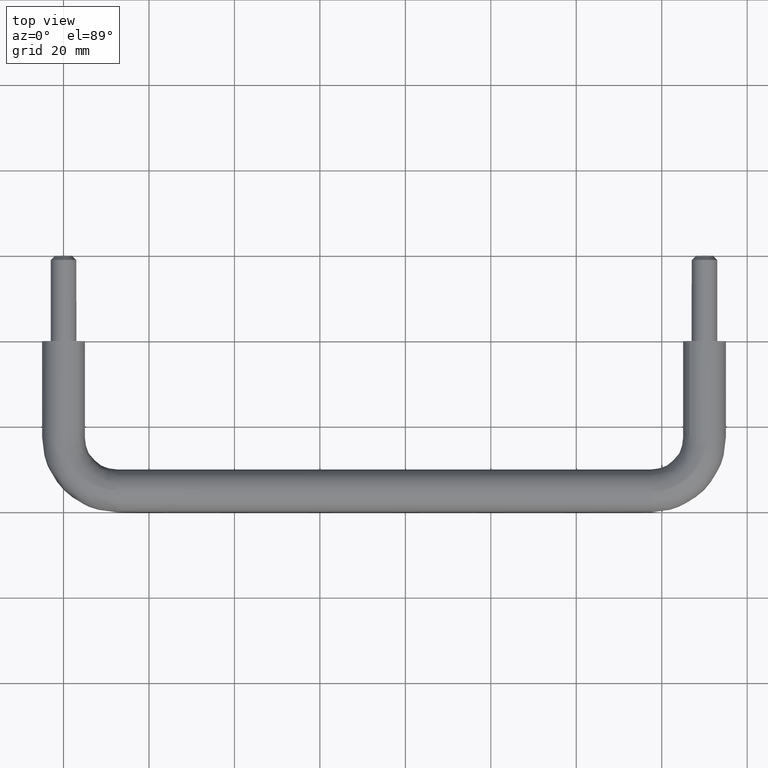
[diagram: clean part render]
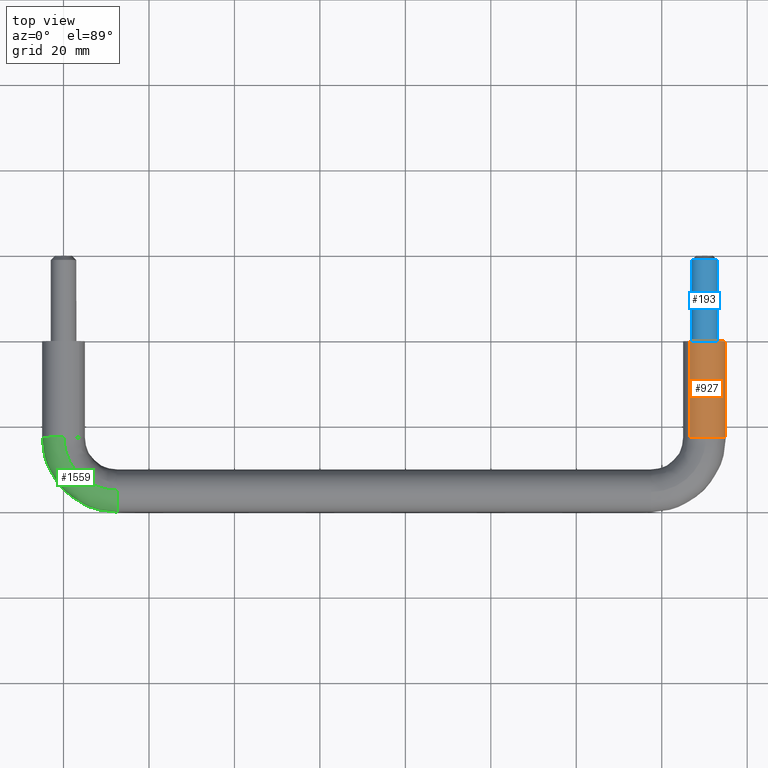
[diagram: same view with three faces highlighted in distinct colors, each labeled with its STEP entity id]
A machine part, top view with three faces highlighted in distinct colors.
Their STEP definitions:

[orange] entity #927 — the highlighted face is a freeform B-spline surface patch.
#730=CARTESIAN_POINT('',(153.294847003536010,-22.500000000000320,-3.760848737092333));
#731=VERTEX_POINT('',#730);
#764=CARTESIAN_POINT('',(146.495454192100910,-22.500000000000291,3.566252750484179));
#765=VERTEX_POINT('',#764);
#779=CARTESIAN_POINT('',(146.495454185912790,1.744438E-014,3.566252744403147));
#780=VERTEX_POINT('',#779);
#781=CARTESIAN_POINT('',(146.495454192100910,-22.500000000000291,3.566252750484179));
#782=CARTESIAN_POINT('',(146.495454185912790,1.744438E-014,3.566252744403147));
#783=QUASI_UNIFORM_CURVE('',1,(#781,#782),.UNSPECIFIED.,.F.,.U.);
#784=EDGE_CURVE('',#765,#780,#783,.T.);
#801=CARTESIAN_POINT('',(153.294847013868010,1.582898E-014,-3.760848728040543));
#802=VERTEX_POINT('',#801);
#818=CARTESIAN_POINT('',(153.294847003536010,-22.500000000000320,-3.760848737092333));
#819=CARTESIAN_POINT('',(153.294847013868010,1.582898E-014,-3.760848728040543));
#820=QUASI_UNIFORM_CURVE('',1,(#818,#819),.UNSPECIFIED.,.F.,.U.);
#821=EDGE_CURVE('',#731,#802,#820,.T.);
#826=CARTESIAN_POINT('',(146.495453678500810,-23.062500000989999,3.566252245770907));
#827=CARTESIAN_POINT('',(150.061705924271650,-23.062500000990003,7.070798567270160));
#828=CARTESIAN_POINT('',(153.566252245770900,-23.062500000989999,3.504546321499253));
#829=CARTESIAN_POINT('',(157.070798567270170,-23.062500000990003,-0.061705924271653));
#830=CARTESIAN_POINT('',(153.504546321499300,-23.062500000989999,-3.566252245770907));
#831=CARTESIAN_POINT('',(153.402481714390890,-23.062500000989999,-3.666550855837281));
#832=CARTESIAN_POINT('',(153.294847860799650,-23.062500000990006,-3.760847986050986));
#833=CARTESIAN_POINT('',(146.495453678500810,0.576562500024771,3.566252245770907));
#834=CARTESIAN_POINT('',(150.061705924271650,0.576562500024771,7.070798567270160));
#835=CARTESIAN_POINT('',(153.566252245770900,0.576562500024771,3.504546321499253));
#836=CARTESIAN_POINT('',(157.070798567270170,0.576562500024771,-0.061705924271653));
#837=CARTESIAN_POINT('',(153.504546321499300,0.576562500024771,-3.566252245770907));
#838=CARTESIAN_POINT('',(153.402481714390890,0.576562500024771,-3.666550855837281));
#839=CARTESIAN_POINT('',(153.294847860799650,0.576562500024771,-3.760847986050986));
#847=(BOUNDED_SURFACE()B_SPLINE_SURFACE(2,1,((#826,#833),(#827,#834),(#828,#835),(#829,#836),(#830,#837),(#831,#838),(#832,#839)),.UNSPECIFIED.,.F.,.F.,.U.)B_SPLINE_SURFACE_WITH_KNOTS((3,2,2,3),(2,2),(0.0,8.284271247461899,16.568542494923800,16.899913344822270),(0.0,23.639062501014781),.UNSPECIFIED.)GEOMETRIC_REPRESENTATION_ITEM()RATIONAL_B_SPLINE_SURFACE(((1.0,1.0),(0.707106781186548,0.707106781186548),(1.0,1.0),(0.707106781186548,0.707106781186548),(1.0,1.0),(0.988284271247462,0.988284271247462),(0.977505800795127,0.977505800795127)))REPRESENTATION_ITEM('')SURFACE());
#848=CARTESIAN_POINT('',(155.0,-22.500000000000298,0.0));
#849=VERTEX_POINT('',#848);
#850=CARTESIAN_POINT('',(155.0,-22.500000000000298,0.0));
#851=CARTESIAN_POINT('',(154.999999999999940,-22.500000000000302,-2.266978966272200));
#852=CARTESIAN_POINT('',(153.294847003535980,-22.500000000000295,-3.760848737092426));
#860=(BOUNDED_CURVE()B_SPLINE_CURVE(2,(#850,#851,#852),.UNSPECIFIED.,.F.,.U.)B_SPLINE_CURVE_WITH_KNOTS((3,3),(0.0,0.134954754507824),.UNSPECIFIED.)CURVE()GEOMETRIC_REPRESENTATION_ITEM()RATIONAL_B_SPLINE_CURVE((1.0,0.841890670232096,0.854482186737985))REPRESENTATION_ITEM(''));
#861=EDGE_CURVE('',#849,#731,#860,.T.);
#862=ORIENTED_EDGE('',*,*,#861,.T.);
#863=ORIENTED_EDGE('',*,*,#821,.T.);
#864=CARTESIAN_POINT('',(155.0,1.734723E-014,0.0));
#865=VERTEX_POINT('',#864);
#866=CARTESIAN_POINT('',(155.0,1.734723E-014,0.0));
#867=CARTESIAN_POINT('',(154.999999999999970,1.734723E-014,-2.266978957992192));
#868=CARTESIAN_POINT('',(153.294847013868040,1.734723E-014,-3.760848728040638));
#876=(BOUNDED_CURVE()B_SPLINE_CURVE(2,(#866,#867,#868),.UNSPECIFIED.,.F.,.U.)B_SPLINE_CURVE_WITH_KNOTS((3,3),(0.0,0.134954754092844),.UNSPECIFIED.)CURVE()GEOMETRIC_REPRESENTATION_ITEM()RATIONAL_B_SPLINE_CURVE((1.0,0.841890670718276,0.854482186660548))REPRESENTATION_ITEM(''));
#877=EDGE_CURVE('',#865,#802,#876,.T.);
#878=ORIENTED_EDGE('',*,*,#877,.F.);
#879=CARTESIAN_POINT('',(146.495454185912820,1.744438E-014,3.566252744403147));
#880=CARTESIAN_POINT('',(147.954446823338690,1.734723E-014,5.0));
#881=CARTESIAN_POINT('',(150.0,1.734723E-014,5.0));
#882=CARTESIAN_POINT('',(155.000000000000030,1.734723E-014,5.000000000000001));
#883=CARTESIAN_POINT('',(155.0,1.734723E-014,0.0));
#891=(BOUNDED_CURVE()B_SPLINE_CURVE(2,(#879,#880,#881,#882,#883),.UNSPECIFIED.,.F.,.U.)B_SPLINE_CURVE_WITH_KNOTS((3,2,3),(0.626316800529167,0.750000000000000,1.0),.UNSPECIFIED.)CURVE()GEOMETRIC_REPRESENTATION_ITEM()RATIONAL_B_SPLINE_CURVE((0.853569642311352,0.855096118375366,1.0,0.707106781186548,1.0))REPRESENTATION_ITEM(''));
#892=EDGE_CURVE('',#780,#865,#891,.T.);
#893=ORIENTED_EDGE('',*,*,#892,.F.);
#894=ORIENTED_EDGE('',*,*,#784,.F.);
#895=CARTESIAN_POINT('',(150.348666260412900,-22.500000000475019,4.987828369024909));
#896=VERTEX_POINT('',#895);
#897=CARTESIAN_POINT('',(146.495454192100910,-22.500000000000288,3.566252750484179));
#898=CARTESIAN_POINT('',(147.954446833466700,-22.500000000000298,4.999999999999999));
#899=CARTESIAN_POINT('',(150.0,-22.500000000000298,5.0));
#900=CARTESIAN_POINT('',(150.174545581918580,-22.500000000000295,4.999999999999999));
#901=CARTESIAN_POINT('',(150.348666260412930,-22.500000000475019,4.987828369024909));
#909=(BOUNDED_CURVE()B_SPLINE_CURVE(2,(#897,#898,#899,#900,#901),.UNSPECIFIED.,.F.,.U.)B_SPLINE_CURVE_WITH_KNOTS((3,2,3),(0.626316801052815,0.750000000000000,0.762166313639729),.UNSPECIFIED.)CURVE()GEOMETRIC_REPRESENTATION_ITEM()RATIONAL_B_SPLINE_CURVE((0.853569642324278,0.855096118988858,1.0,0.985746276947863,0.972879876017215))REPRESENTATION_ITEM(''));
#910=EDGE_CURVE('',#765,#896,#909,.T.);
#911=ORIENTED_EDGE('',*,*,#910,.T.);
#912=CARTESIAN_POINT('',(150.348666260412870,-22.500000000475019,4.987828369024910));
#913=CARTESIAN_POINT('',(155.0,-22.500000000000306,4.662684231580748));
#914=CARTESIAN_POINT('',(155.0,-22.500000000000298,0.0));
#922=(BOUNDED_CURVE()B_SPLINE_CURVE(2,(#912,#913,#914),.UNSPECIFIED.,.F.,.U.)B_SPLINE_CURVE_WITH_KNOTS((3,3),(0.762166313639729,1.0),.UNSPECIFIED.)CURVE()GEOMETRIC_REPRESENTATION_ITEM()RATIONAL_B_SPLINE_CURVE((0.972879876017216,0.721360504238684,1.0))REPRESENTATION_ITEM(''));
#923=EDGE_CURVE('',#896,#849,#922,.T.);
#924=ORIENTED_EDGE('',*,*,#923,.T.);
#925=EDGE_LOOP('',(#862,#863,#878,#893,#894,#911,#924));
#926=FACE_OUTER_BOUND('',#925,.T.);
#927=ADVANCED_FACE('',(#926),#847,.T.);

[blue] entity #193 — the highlighted face is a freeform B-spline surface patch.
#44=CARTESIAN_POINT('',(152.281217896800090,19.475000000000009,-1.948344144990550));
#45=CARTESIAN_POINT('',(154.229562041790620,19.475000000000009,0.332873751809542));
#46=CARTESIAN_POINT('',(151.948344144990610,19.475000000000009,2.281217896800092));
#47=CARTESIAN_POINT('',(149.667126248190440,19.475000000000009,4.229562041790642));
#48=CARTESIAN_POINT('',(147.718782103199910,19.475000000000009,1.948344144990550));
#49=CARTESIAN_POINT('',(145.770437958209440,19.475000000000009,-0.332873751809542));
#50=CARTESIAN_POINT('',(148.051655855009390,19.475000000000009,-2.281217896800092));
#51=CARTESIAN_POINT('',(152.281217896800090,-0.486874999999980,-1.948344144990550));
#52=CARTESIAN_POINT('',(154.229562041790620,-0.486874999999980,0.332873751809542));
#53=CARTESIAN_POINT('',(151.948344144990610,-0.486874999999980,2.281217896800092));
#54=CARTESIAN_POINT('',(149.667126248190440,-0.486874999999980,4.229562041790642));
#55=CARTESIAN_POINT('',(147.718782103199910,-0.486874999999980,1.948344144990550));
#56=CARTESIAN_POINT('',(145.770437958209440,-0.486874999999980,-0.332873751809542));
#57=CARTESIAN_POINT('',(148.051655855009390,-0.486874999999980,-2.281217896800092));
#65=(BOUNDED_SURFACE()B_SPLINE_SURFACE(2,1,((#44,#51),(#45,#52),(#46,#53),(#47,#54),(#48,#55),(#49,#56),(#50,#57)),.UNSPECIFIED.,.F.,.F.,.U.)B_SPLINE_SURFACE_WITH_KNOTS((3,2,2,3),(2,2),(0.0,4.970562748477141,9.941125496954282,14.911688245431421),(0.0,19.961874999999988),.UNSPECIFIED.)GEOMETRIC_REPRESENTATION_ITEM()RATIONAL_B_SPLINE_SURFACE(((1.0,1.0),(0.707106781186548,0.707106781186548),(1.0,1.0),(0.707106781186548,0.707106781186548),(1.0,1.0),(0.707106781186548,0.707106781186548),(1.0,1.0)))REPRESENTATION_ITEM('')SURFACE());
#66=CARTESIAN_POINT('',(153.0,1.734723E-014,0.0));
#67=VERTEX_POINT('',#66);
#68=CARTESIAN_POINT('',(152.281219531185910,-7.767398E-014,-1.948342231367466));
#69=VERTEX_POINT('',#68);
#70=CARTESIAN_POINT('',(153.0,1.734723E-014,0.0));
#71=CARTESIAN_POINT('',(153.000000000000060,1.734723E-014,-1.106757001784977));
#72=CARTESIAN_POINT('',(152.281219531185850,-7.767398E-014,-1.948342231367466));
#80=(BOUNDED_CURVE()B_SPLINE_CURVE(2,(#70,#71,#72),.UNSPECIFIED.,.F.,.U.)B_SPLINE_CURVE_WITH_KNOTS((3,3),(0.0,0.113143034579826),.UNSPECIFIED.)CURVE()GEOMETRIC_REPRESENTATION_ITEM()RATIONAL_B_SPLINE_CURVE((1.0,0.867444689662372,0.854871059814903))REPRESENTATION_ITEM(''));
#81=EDGE_CURVE('',#67,#69,#80,.T.);
#82=ORIENTED_EDGE('',*,*,#81,.T.);
#83=CARTESIAN_POINT('',(152.281219511010700,19.0,-1.948342254989633));
#84=VERTEX_POINT('',#83);
#85=CARTESIAN_POINT('',(152.281219511010700,19.0,-1.948342254989633));
#86=CARTESIAN_POINT('',(152.281219531185910,-7.767398E-014,-1.948342231367466));
#87=QUASI_UNIFORM_CURVE('',1,(#85,#86),.UNSPECIFIED.,.F.,.U.);
#88=EDGE_CURVE('',#84,#69,#87,.T.);
#89=ORIENTED_EDGE('',*,*,#88,.F.);
#90=CARTESIAN_POINT('',(152.990752001199500,18.999999999999730,0.235377287185623));
#91=VERTEX_POINT('',#90);
#92=CARTESIAN_POINT('',(152.990752001199550,18.999999999999726,0.235377287185623));
#93=CARTESIAN_POINT('',(153.0,18.999999999999996,0.117870321025085));
#94=CARTESIAN_POINT('',(153.0,19.0,0.0));
#95=CARTESIAN_POINT('',(153.0,18.999999999999996,-1.106757019431589));
#96=CARTESIAN_POINT('',(152.281219511010620,19.000000000000004,-1.948342254989634));
#104=(BOUNDED_CURVE()B_SPLINE_CURVE(2,(#92,#93,#94,#95,#96),.UNSPECIFIED.,.F.,.U.)B_SPLINE_CURVE_WITH_KNOTS((3,2,3),(0.736331300632530,0.750000000000000,0.863143036144697),.UNSPECIFIED.)CURVE()GEOMETRIC_REPRESENTATION_ITEM()RATIONAL_B_SPLINE_CURVE((0.969723356171321,0.983986122581073,1.0,0.867444687829011,0.854871059467093))REPRESENTATION_ITEM(''));
#105=EDGE_CURVE('',#91,#84,#104,.T.);
#106=ORIENTED_EDGE('',*,*,#105,.F.);
#107=CARTESIAN_POINT('',(150.0,19.0,3.0));
#108=VERTEX_POINT('',#107);
#109=CARTESIAN_POINT('',(150.0,19.0,3.0));
#110=CARTESIAN_POINT('',(152.773171474970780,19.000000000000004,3.000000000000000));
#111=CARTESIAN_POINT('',(152.990752001199550,18.999999999999734,0.235377287185623));
#119=(BOUNDED_CURVE()B_SPLINE_CURVE(2,(#109,#110,#111),.UNSPECIFIED.,.F.,.U.)B_SPLINE_CURVE_WITH_KNOTS((3,3),(0.500000000000000,0.736331300632531),.UNSPECIFIED.)CURVE()GEOMETRIC_REPRESENTATION_ITEM()RATIONAL_B_SPLINE_CURVE((1.0,0.723120658605473,0.969723356171323))REPRESENTATION_ITEM(''));
#120=EDGE_CURVE('',#108,#91,#119,.T.);
#121=ORIENTED_EDGE('',*,*,#120,.F.);
#122=CARTESIAN_POINT('',(147.009247998800500,18.999999999999730,-0.235377287185624));
#123=VERTEX_POINT('',#122);
#124=CARTESIAN_POINT('',(147.009247998800500,18.999999999999730,-0.235377287185624));
#125=CARTESIAN_POINT('',(146.999999999999940,19.0,-0.117870321025085));
#126=CARTESIAN_POINT('',(147.0,19.0,0.0));
#127=CARTESIAN_POINT('',(147.0,18.999999999999993,3.0));
#128=CARTESIAN_POINT('',(150.0,19.0,3.0));
#136=(BOUNDED_CURVE()B_SPLINE_CURVE(2,(#124,#125,#126,#127,#128),.UNSPECIFIED.,.F.,.U.)B_SPLINE_CURVE_WITH_KNOTS((3,2,3),(0.236331300632530,0.250000000000000,0.500000000000000),.UNSPECIFIED.)CURVE()GEOMETRIC_REPRESENTATION_ITEM()RATIONAL_B_SPLINE_CURVE((0.969723356171321,0.983986122581073,1.0,0.707106781186548,1.0))REPRESENTATION_ITEM(''));
#137=EDGE_CURVE('',#123,#108,#136,.T.);
#138=ORIENTED_EDGE('',*,*,#137,.F.);
#139=CARTESIAN_POINT('',(148.051657031255590,19.0,-2.281218901408150));
#140=VERTEX_POINT('',#139);
#141=CARTESIAN_POINT('',(148.051657031255530,19.0,-2.281218901408150));
#142=CARTESIAN_POINT('',(147.106744534522850,19.0,-1.474188231115882));
#143=CARTESIAN_POINT('',(147.009247998800530,18.999999999999730,-0.235377287185624));
#151=(BOUNDED_CURVE()B_SPLINE_CURVE(2,(#141,#142,#143),.UNSPECIFIED.,.F.,.U.)B_SPLINE_CURVE_WITH_KNOTS((3,3),(0.113143083427954,0.236331300632530),.UNSPECIFIED.)CURVE()GEOMETRIC_REPRESENTATION_ITEM()RATIONAL_B_SPLINE_CURVE((0.854871048957902,0.841181150421727,0.969723356171321))REPRESENTATION_ITEM(''));
#152=EDGE_CURVE('',#140,#123,#151,.T.);
#153=ORIENTED_EDGE('',*,*,#152,.F.);
#154=CARTESIAN_POINT('',(148.051655855008310,1.774969E-014,-2.281217896799076));
#155=VERTEX_POINT('',#154);
#156=CARTESIAN_POINT('',(148.051657031255590,19.0,-2.281218901408150));
#157=CARTESIAN_POINT('',(148.051655855008310,1.774969E-014,-2.281217896799076));
#158=QUASI_UNIFORM_CURVE('',1,(#156,#157),.UNSPECIFIED.,.F.,.U.);
#159=EDGE_CURVE('',#140,#155,#158,.T.);
#160=ORIENTED_EDGE('',*,*,#159,.T.);
#161=CARTESIAN_POINT('',(147.0,1.734723E-014,0.0));
#162=VERTEX_POINT('',#161);
#163=CARTESIAN_POINT('',(148.051655855008250,1.774969E-014,-2.281217896799076));
#164=CARTESIAN_POINT('',(147.0,1.734723E-014,-1.383018943280056));
#165=CARTESIAN_POINT('',(147.0,1.734723E-014,0.0));
#173=(BOUNDED_CURVE()B_SPLINE_CURVE(2,(#163,#164,#165),.UNSPECIFIED.,.F.,.U.)B_SPLINE_CURVE_WITH_KNOTS((3,3),(0.363143161349532,0.500000000000000),.UNSPECIFIED.)CURVE()GEOMETRIC_REPRESENTATION_ITEM()RATIONAL_B_SPLINE_CURVE((0.854871031639119,0.839662240044124,1.0))REPRESENTATION_ITEM(''));
#174=EDGE_CURVE('',#155,#162,#173,.T.);
#175=ORIENTED_EDGE('',*,*,#174,.T.);
#176=CARTESIAN_POINT('',(147.0,1.734723E-014,0.0));
#177=CARTESIAN_POINT('',(147.0,1.734723E-014,3.0));
#178=CARTESIAN_POINT('',(150.0,1.734723E-014,3.0));
#179=CARTESIAN_POINT('',(153.000000000000030,1.734723E-014,3.0));
#180=CARTESIAN_POINT('',(153.0,1.734723E-014,0.0));
#188=(BOUNDED_CURVE()B_SPLINE_CURVE(2,(#176,#177,#178,#179,#180),.UNSPECIFIED.,.F.,.U.)B_SPLINE_CURVE_WITH_KNOTS((3,2,3),(0.500000000000000,0.750000000000000,1.0),.UNSPECIFIED.)CURVE()GEOMETRIC_REPRESENTATION_ITEM()RATIONAL_B_SPLINE_CURVE((1.0,0.707106781186548,1.0,0.707106781186548,1.0))REPRESENTATION_ITEM(''));
#189=EDGE_CURVE('',#162,#67,#188,.T.);
#190=ORIENTED_EDGE('',*,*,#189,.T.);
#191=EDGE_LOOP('',(#82,#89,#106,#121,#138,#153,#160,#175,#190));
#192=FACE_OUTER_BOUND('',#191,.T.);
#193=ADVANCED_FACE('',(#192),#65,.T.);

[green] entity #1559 — the highlighted face is a freeform B-spline surface patch.
#980=CARTESIAN_POINT('',(12.499999999016350,-34.937169799205734,4.999605221001767));
#981=VERTEX_POINT('',#980);
#995=CARTESIAN_POINT('',(12.500000000000000,-40.0,0.0));
#996=VERTEX_POINT('',#995);
#997=CARTESIAN_POINT('',(12.499999999016358,-34.937169799205726,4.999605221001768));
#998=CARTESIAN_POINT('',(12.500000000000002,-34.968583658662745,5.0));
#999=CARTESIAN_POINT('',(12.500000000000000,-35.0,5.0));
#1000=CARTESIAN_POINT('',(12.500000000000000,-39.999999999999993,5.000000000000001));
#1001=CARTESIAN_POINT('',(12.500000000000000,-40.0,0.0));
#1009=(BOUNDED_CURVE()B_SPLINE_CURVE(2,(#997,#998,#999,#1000,#1001),.UNSPECIFIED.,.F.,.U.)B_SPLINE_CURVE_WITH_KNOTS((3,2,3),(0.747784295824808,0.750000000000000,1.0),.UNSPECIFIED.)CURVE()GEOMETRIC_REPRESENTATION_ITEM()RATIONAL_B_SPLINE_CURVE((0.994854295420939,0.997404141088758,1.0,0.707106781186548,1.0))REPRESENTATION_ITEM(''));
#1010=EDGE_CURVE('',#981,#996,#1009,.T.);
#1012=CARTESIAN_POINT('',(12.499999999540499,-35.348666260475738,-4.987828369020527));
#1013=VERTEX_POINT('',#1012);
#1014=CARTESIAN_POINT('',(12.500000000000000,-40.0,0.0));
#1015=CARTESIAN_POINT('',(12.500000000000000,-40.000000000000007,-4.662684231463254));
#1016=CARTESIAN_POINT('',(12.499999999540504,-35.348666260475738,-4.987828369020527));
#1024=(BOUNDED_CURVE()B_SPLINE_CURVE(2,(#1014,#1015,#1016),.UNSPECIFIED.,.F.,.U.)B_SPLINE_CURVE_WITH_KNOTS((3,3),(0.0,0.237833686355948),.UNSPECIFIED.)CURVE()GEOMETRIC_REPRESENTATION_ITEM()RATIONAL_B_SPLINE_CURVE((1.0,0.721360504243749,0.972879876008072))REPRESENTATION_ITEM(''));
#1025=EDGE_CURVE('',#996,#1013,#1024,.T.);
#1295=CARTESIAN_POINT('',(-0.348666260686996,-22.500000000517630,-4.987828369005747));
#1296=VERTEX_POINT('',#1295);
#1312=CARTESIAN_POINT('',(-4.999999999999997,-22.500000000000298,0.0));
#1313=VERTEX_POINT('',#1312);
#1314=CARTESIAN_POINT('',(-4.999999999999997,-22.500000000000298,0.0));
#1315=CARTESIAN_POINT('',(-4.999999999999997,-22.500000000000295,-4.662684231067024));
#1316=CARTESIAN_POINT('',(-0.348666260686996,-22.500000000517634,-4.987828369005747));
#1324=(BOUNDED_CURVE()B_SPLINE_CURVE(2,(#1314,#1315,#1316),.UNSPECIFIED.,.F.,.U.)B_SPLINE_CURVE_WITH_KNOTS((3,3),(0.0,0.237833686341369),.UNSPECIFIED.)CURVE()GEOMETRIC_REPRESENTATION_ITEM()RATIONAL_B_SPLINE_CURVE((1.0,0.721360504260830,0.972879875977236))REPRESENTATION_ITEM(''));
#1325=EDGE_CURVE('',#1313,#1296,#1324,.T.);
#1327=CARTESIAN_POINT('',(0.062830199638748,-22.500000000365311,4.999605221016291));
#1328=VERTEX_POINT('',#1327);
#1329=CARTESIAN_POINT('',(0.062830199638748,-22.500000000365315,4.999605221016291));
#1330=CARTESIAN_POINT('',(0.031416340181459,-22.500000000000298,5.000000000000001));
#1331=CARTESIAN_POINT('',(2.755364E-015,-22.500000000000298,5.0));
#1332=CARTESIAN_POINT('',(-4.999999999999997,-22.500000000000295,5.000000000000001));
#1333=CARTESIAN_POINT('',(-4.999999999999997,-22.500000000000298,0.0));
#1341=(BOUNDED_CURVE()B_SPLINE_CURVE(2,(#1329,#1330,#1331,#1332,#1333),.UNSPECIFIED.,.F.,.U.)B_SPLINE_CURVE_WITH_KNOTS((3,2,3),(0.747784295906111,0.750000000000000,1.0),.UNSPECIFIED.)CURVE()GEOMETRIC_REPRESENTATION_ITEM()RATIONAL_B_SPLINE_CURVE((0.994854295608068,0.997404141184011,1.0,0.707106781186548,1.0))REPRESENTATION_ITEM(''));
#1342=EDGE_CURVE('',#1328,#1313,#1341,.T.);
#1498=CARTESIAN_POINT('',(-0.246044111144181,-21.616309941879880,-4.992863199170184));
#1499=CARTESIAN_POINT('',(-1.262164052789914,-36.272477542064550,-4.992863199170183));
#1500=CARTESIAN_POINT('',(13.393238230852905,-35.245378537532901,-4.992863199170184));
#1501=CARTESIAN_POINT('',(-0.281871507423108,-21.613826009326072,-4.990352729764621));
#1502=CARTESIAN_POINT('',(-1.300847624012126,-36.311190103102270,-4.990352729764619));
#1503=CARTESIAN_POINT('',(13.395749002021525,-35.281204062974943,-4.990352729764621));
#1504=CARTESIAN_POINT('',(-5.016890184537566,-21.285544630923955,-4.658564189198486));
#1505=CARTESIAN_POINT('',(-6.413343960855873,-41.427517790592084,-4.658564189198486));
#1506=CARTESIAN_POINT('',(13.727577424182968,-40.015975486631447,-4.658564189198487));
#1507=CARTESIAN_POINT('',(-4.957698358406729,-21.289648431900766,0.062830199416762));
#1508=CARTESIAN_POINT('',(-6.349433337709312,-41.363559272250889,0.062830199416762));
#1509=CARTESIAN_POINT('',(13.723429282093315,-39.956786751382538,0.062830199416762));
#1510=CARTESIAN_POINT('',(-4.895018620471904,-21.293994051669181,5.062435420435840));
#1511=CARTESIAN_POINT('',(-6.281756744978027,-41.295831962073514,5.062435420435841));
#1512=CARTESIAN_POINT('',(13.719036708386920,-39.894110286461604,5.062435420435841));
#1513=CARTESIAN_POINT('',(0.127900252544035,-21.642235704696951,4.999160711642807));
#1514=CARTESIAN_POINT('',(-0.858408688786911,-35.868419600167549,4.999160711642806));
#1515=CARTESIAN_POINT('',(13.367032343053856,-34.871453700491429,4.999160711642807));
#1516=CARTESIAN_POINT('',(0.162980411815342,-21.644667830909214,4.998718799894196));
#1517=CARTESIAN_POINT('',(-0.820531924617578,-35.830514450811144,4.998718799894196));
#1518=CARTESIAN_POINT('',(13.364573937988546,-34.836375373037754,4.998718799894196));
#1526=(BOUNDED_SURFACE()B_SPLINE_SURFACE(2,2,((#1498,#1501,#1504,#1507,#1510,#1513,#1516),(#1499,#1502,#1505,#1508,#1511,#1514,#1517),(#1500,#1503,#1506,#1509,#1512,#1515,#1518)),.UNSPECIFIED.,.F.,.F.,.U.)B_SPLINE_SURFACE_WITH_KNOTS((3,3),(3,1,2,1,3),(0.0,31.890571891225530),(0.0,0.083143824436747,8.036044222000166,16.320315469462059,16.403445195687461),.UNSPECIFIED.)GEOMETRIC_REPRESENTATION_ITEM()RATIONAL_B_SPLINE_SURFACE(((0.905744002702898,0.903251919710379,0.662386295974072,0.921487970695580,0.651590392860676,0.924196297244061,0.926904623792541),(0.591078766587474,0.589452460106773,0.432266152092013,0.601353110281207,0.425220862167464,0.603120534974073,0.604887959666939),(0.895737598737774,0.893273047574406,0.655068439230114,0.911307631818076,0.644391806205615,0.913986037539664,0.916664443261253)))REPRESENTATION_ITEM('')SURFACE());
#1527=ORIENTED_EDGE('',*,*,#1025,.F.);
#1528=ORIENTED_EDGE('',*,*,#1010,.F.);
#1529=CARTESIAN_POINT('',(0.062830199638748,-22.500000000365311,4.999605221016291));
#1530=CARTESIAN_POINT('',(0.062830200146783,-34.937169798616246,4.999605221019078));
#1531=CARTESIAN_POINT('',(12.499999999016350,-34.937169799205734,4.999605221001768));
#1539=(BOUNDED_CURVE()B_SPLINE_CURVE(2,(#1529,#1530,#1531),.UNSPECIFIED.,.F.,.U.)B_SPLINE_CURVE_WITH_KNOTS((3,3),(-1.747842683607927,-0.278273131109842),.UNSPECIFIED.)CURVE()GEOMETRIC_REPRESENTATION_ITEM()RATIONAL_B_SPLINE_CURVE((0.893710737941969,0.628668022929664,0.884455039398310))REPRESENTATION_ITEM(''));
#1540=EDGE_CURVE('',#1328,#981,#1539,.T.);
#1541=ORIENTED_EDGE('',*,*,#1540,.F.);
#1542=ORIENTED_EDGE('',*,*,#1342,.T.);
#1543=ORIENTED_EDGE('',*,*,#1325,.T.);
#1544=CARTESIAN_POINT('',(-0.348666260686996,-22.500000000517627,-4.987828369005747));
#1545=CARTESIAN_POINT('',(-0.348666256842552,-35.348666256958502,-4.987828369202161));
#1546=CARTESIAN_POINT('',(12.499999999540506,-35.348666260475731,-4.987828369020527));
#1554=(BOUNDED_CURVE()B_SPLINE_CURVE(2,(#1544,#1545,#1546),.UNSPECIFIED.,.F.,.U.)B_SPLINE_CURVE_WITH_KNOTS((3,3),(-1.747842683585124,-0.278273131020265),.UNSPECIFIED.)CURVE()GEOMETRIC_REPRESENTATION_ITEM()RATIONAL_B_SPLINE_CURVE((0.873607430563128,0.614526639176238,0.864559931584812))REPRESENTATION_ITEM(''));
#1555=EDGE_CURVE('',#1296,#1013,#1554,.T.);
#1556=ORIENTED_EDGE('',*,*,#1555,.T.);
#1557=EDGE_LOOP('',(#1527,#1528,#1541,#1542,#1543,#1556));
#1558=FACE_OUTER_BOUND('',#1557,.T.);
#1559=ADVANCED_FACE('',(#1558),#1526,.T.);